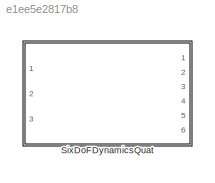
MODEL slx_e1ee5e2817b8
KIND library
CONFIG AbsTol = auto
CONFIG EnableMultiTasking = off
CONFIG FixedStep = auto
CONFIG MaxStep = auto
CONFIG MinStep = auto
CONFIG RelTol = 1e-3
CONFIG SampleTimeConstraint = Unconstrained
CONFIG Solver = VariableStepAuto
CONFIG SolverName = VariableStepAuto
CONFIG StartTime = 0.0
CONFIG StopTime = 10.0
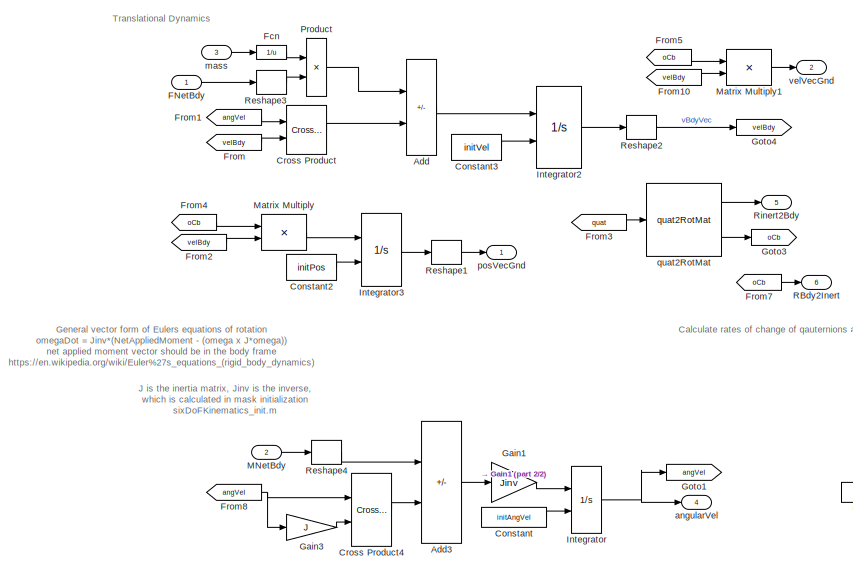
[diagram: SixDoFDynamicsQuat - part 1/2, left side, full height]
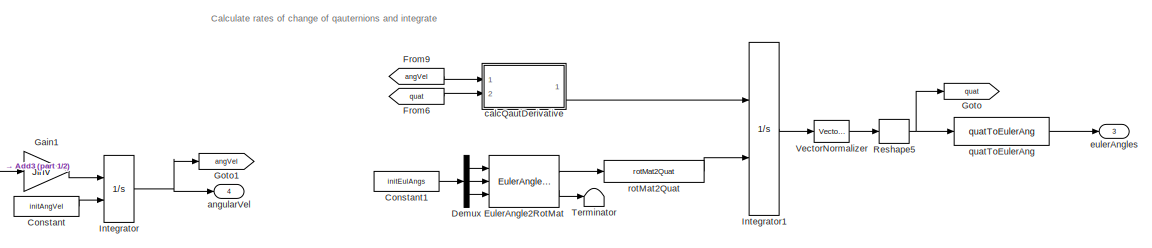
[diagram: SixDoFDynamicsQuat - part 2/2, bottom center region]
BLOCK [SubSystem] SixDoFDynamicsQuat
  Ports = [3, 6]
  RequestExecContextInheritance = off
BLOCK [Sum] SixDoFDynamicsQuat/Add
  IconShape = rectangular
  Inputs = +-
  Ports = [2, 1]
BLOCK [Sum] SixDoFDynamicsQuat/Add3
  IconShape = rectangular
  Inputs = +-
  Ports = [2, 1]
BLOCK [Constant] SixDoFDynamicsQuat/Constant
  Value = initAngVel
BLOCK [Constant] SixDoFDynamicsQuat/Constant1
  Value = initEulAngs
BLOCK [Constant] SixDoFDynamicsQuat/Constant2
  Value = initPos
BLOCK [Constant] SixDoFDynamicsQuat/Constant3
  Value = initVel
BLOCK [Reference] SixDoFDynamicsQuat/Cross Product  REF=vrlib/Utilities/Cross Product
  Ports = [2, 1]
  SourceBlock = vrlib/Utilities/Cross Product
  SourceProductBaseCode = SL
  SourceType = Cross Product
BLOCK [Reference] SixDoFDynamicsQuat/Cross Product4  REF=vrlib/Utilities/Cross Product
  Ports = [2, 1]
  SourceBlock = vrlib/Utilities/Cross Product
  SourceProductBaseCode = SL
  SourceType = Cross Product
BLOCK [Demux] SixDoFDynamicsQuat/Demux
  Outputs = 3
  Ports = [1, 3]
BLOCK [Reference] SixDoFDynamicsQuat/EulerAngle2RotMat  REF=eulAng2RotMat_ul/EulerAngle2RotMat
  Ports = [3, 2]
  SourceBlock = eulAng2RotMat_ul/EulerAngle2RotMat
  SourceType = SubSystem
BLOCK [Inport] SixDoFDynamicsQuat/FNetBdy
BLOCK [Fcn] SixDoFDynamicsQuat/Fcn
  Expr = 1/u
BLOCK [From] SixDoFDynamicsQuat/From
  GotoTag = velBdy
BLOCK [From] SixDoFDynamicsQuat/From1
  GotoTag = angVel
BLOCK [From] SixDoFDynamicsQuat/From10
  GotoTag = velBdy
BLOCK [From] SixDoFDynamicsQuat/From2
  GotoTag = velBdy
BLOCK [From] SixDoFDynamicsQuat/From3
  GotoTag = quat
BLOCK [From] SixDoFDynamicsQuat/From4
  GotoTag = oCb
BLOCK [From] SixDoFDynamicsQuat/From5
  GotoTag = oCb
BLOCK [From] SixDoFDynamicsQuat/From6
  GotoTag = quat
BLOCK [From] SixDoFDynamicsQuat/From7
  GotoTag = oCb
BLOCK [From] SixDoFDynamicsQuat/From8
  GotoTag = angVel
BLOCK [From] SixDoFDynamicsQuat/From9
  GotoTag = angVel
BLOCK [Gain] SixDoFDynamicsQuat/Gain1
  Gain = Jinv
  Multiplication = Matrix(K*u)
BLOCK [Gain] SixDoFDynamicsQuat/Gain3
  Gain = J
  Multiplication = Matrix(K*u)
BLOCK [Goto] SixDoFDynamicsQuat/Goto
  GotoTag = quat
BLOCK [Goto] SixDoFDynamicsQuat/Goto1
  GotoTag = angVel
BLOCK [Goto] SixDoFDynamicsQuat/Goto3
  GotoTag = oCb
BLOCK [Goto] SixDoFDynamicsQuat/Goto4
  GotoTag = velBdy
BLOCK [Integrator] SixDoFDynamicsQuat/Integrator
  InitialCondition = initAngRates
  InitialConditionSource = external
  Ports = [2, 1]
BLOCK [Integrator] SixDoFDynamicsQuat/Integrator1
  InitialCondition = initEulAngs
  InitialConditionSource = external
  Ports = [2, 1]
BLOCK [Integrator] SixDoFDynamicsQuat/Integrator2
  InitialCondition = initVel
  InitialConditionSource = external
  Ports = [2, 1]
BLOCK [Integrator] SixDoFDynamicsQuat/Integrator3
  InitialCondition = initPos
  InitialConditionSource = external
  Ports = [2, 1]
BLOCK [Inport] SixDoFDynamicsQuat/MNetBdy
  Port = 2
BLOCK [Product] SixDoFDynamicsQuat/Matrix Multiply
  Multiplication = Matrix(*)
  Ports = [2, 1]
BLOCK [Product] SixDoFDynamicsQuat/Matrix Multiply1
  Multiplication = Matrix(*)
  Ports = [2, 1]
BLOCK [Product] SixDoFDynamicsQuat/Product
  Ports = [2, 1]
BLOCK [Outport] SixDoFDynamicsQuat/RBdy2Inert
  Port = 6
  VectorParamsAs1DForOutWhenUnconnected = off
BLOCK [Reshape] SixDoFDynamicsQuat/Reshape1
  OutputDimensionality = Column vector (2-D)
  Ports = [1, 1]
BLOCK [Reshape] SixDoFDynamicsQuat/Reshape2
  OutputDimensionality = Column vector (2-D)
  Ports = [1, 1]
BLOCK [Reshape] SixDoFDynamicsQuat/Reshape3
  OutputDimensionality = Column vector (2-D)
  Ports = [1, 1]
BLOCK [Reshape] SixDoFDynamicsQuat/Reshape4
  OutputDimensionality = Column vector (2-D)
  Ports = [1, 1]
BLOCK [Reshape] SixDoFDynamicsQuat/Reshape5
  OutputDimensionality = Column vector (2-D)
  Ports = [1, 1]
BLOCK [Outport] SixDoFDynamicsQuat/Rinert2Bdy
  Port = 5
  VectorParamsAs1DForOutWhenUnconnected = off
BLOCK [Terminator] SixDoFDynamicsQuat/Terminator
BLOCK [Reference] SixDoFDynamicsQuat/VectorNormalizer   REF=vectorNormalizer_ul/VectorNormalizer

  Ports = [1, 1]
  SourceBlock = vectorNormalizer_ul/VectorNormalizer
  SourceType = SubSystem
BLOCK [Outport] SixDoFDynamicsQuat/angularVel
  Port = 4
  VectorParamsAs1DForOutWhenUnconnected = off
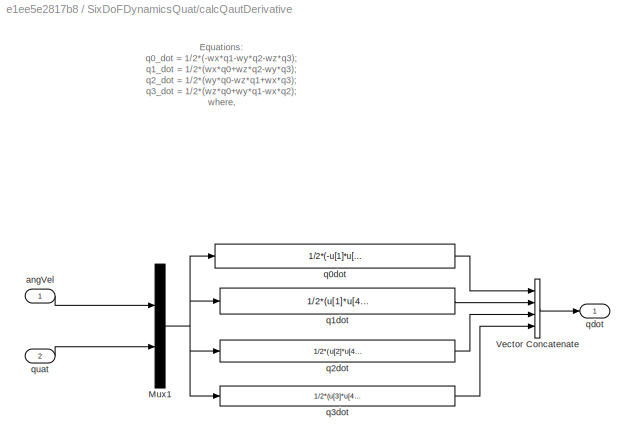
BLOCK [SubSystem] SixDoFDynamicsQuat/calcQautDerivative
  Ports = [2, 1]
  RequestExecContextInheritance = off
BLOCK [Mux] SixDoFDynamicsQuat/calcQautDerivative/Mux1
  DisplayOption = bar
  Inputs = [3 4]
  Ports = [2, 1]
BLOCK [Concatenate] SixDoFDynamicsQuat/calcQautDerivative/Vector Concatenate
  NumInputs = 4
  Ports = [4, 1]
BLOCK [Inport] SixDoFDynamicsQuat/calcQautDerivative/angVel
BLOCK [Fcn] SixDoFDynamicsQuat/calcQautDerivative/q0dot
  Expr = 1/2*(-u[1]*u[5]-u[2]*u[6]-u[3]*u[7])
BLOCK [Fcn] SixDoFDynamicsQuat/calcQautDerivative/q1dot
  Expr = 1/2*(u[1]*u[4]+u[3]*u[6]-u[2]*u[7])
BLOCK [Fcn] SixDoFDynamicsQuat/calcQautDerivative/q2dot
  Expr = 1/2*(u[2]*u[4]-u[3]*u[5]+u[1]*u[7])
BLOCK [Fcn] SixDoFDynamicsQuat/calcQautDerivative/q3dot
  Expr = 1/2*(u[3]*u[4]+u[2]*u[5]-u[1]*u[6])
BLOCK [Outport] SixDoFDynamicsQuat/calcQautDerivative/qdot
  PortDimensions = [4,1]
  VectorParamsAs1DForOutWhenUnconnected = off
BLOCK [Inport] SixDoFDynamicsQuat/calcQautDerivative/quat
  Port = 2
BLOCK [Outport] SixDoFDynamicsQuat/eulerAngles
  Port = 3
  VectorParamsAs1DForOutWhenUnconnected = off
BLOCK [Inport] SixDoFDynamicsQuat/mass
  Port = 3
BLOCK [Outport] SixDoFDynamicsQuat/posVecGnd
  VectorParamsAs1DForOutWhenUnconnected = off
BLOCK [Reference] SixDoFDynamicsQuat/quat2RotMat  REF=quat2RotMat_ul/quat2RotMat
  Ports = [1, 2]
  SourceBlock = quat2RotMat_ul/quat2RotMat
  SourceType = SubSystem
BLOCK [Reference] SixDoFDynamicsQuat/quatToEulerAng  REF=quat2EulerAng_ul/quatToEulerAng
  Ports = [1, 1]
  SourceBlock = quat2EulerAng_ul/quatToEulerAng
  SourceType = SubSystem
BLOCK [Reference] SixDoFDynamicsQuat/rotMat2Quat  REF=rotMat2Quat_ul/rotMat2Quat
  Ports = [1, 1]
  SourceBlock = rotMat2Quat_ul/rotMat2Quat
  SourceType = SubSystem
BLOCK [Outport] SixDoFDynamicsQuat/velVecGnd
  Port = 2
  VectorParamsAs1DForOutWhenUnconnected = off
ANNOTATION SixDoFDynamicsQuat: Calculate rates of change of qauternions and integrate
ANNOTATION SixDoFDynamicsQuat: General vector form of Eulers equations of rotation omegaDot = Jinv*(NetAppliedMoment - (omega x J*omega)) net applied moment vector should be in the body frame https://en.wikipedia.org/wiki/Euler%27s_equations_(rigid_body_dynamics)
ANNOTATION SixDoFDynamicsQuat: J is the inertia matrix, Jinv is the inverse, which is calculated in mask initialization sixDoFKinematics_init.m
ANNOTATION SixDoFDynamicsQuat: Translational Dynamics
ANNOTATION SixDoFDynamicsQuat/calcQautDerivative: Equations: q0_dot = 1/2*(-wx*q1-wy*q2-wz*q3); q1_dot = 1/2*(wx*q0+wz*q2-wy*q3); q2_dot = 1/2*(wy*q0-wz*q1+wx*q3); q3_dot = 1/2*(wz*q0+wy*q1-wx*q2); where, wx..wz=u[1]..u[3] q0..q3 = u[4]...u[7]
LINE SixDoFDynamicsQuat/Add3:1 -> SixDoFDynamicsQuat/Gain1:1
LINE SixDoFDynamicsQuat/Add:1 -> SixDoFDynamicsQuat/Integrator2:1
LINE SixDoFDynamicsQuat/Constant1:1 -> SixDoFDynamicsQuat/Demux:1
LINE SixDoFDynamicsQuat/Constant2:1 -> SixDoFDynamicsQuat/Integrator3:2
LINE SixDoFDynamicsQuat/Constant3:1 -> SixDoFDynamicsQuat/Integrator2:2
LINE SixDoFDynamicsQuat/Constant:1 -> SixDoFDynamicsQuat/Integrator:2
LINE SixDoFDynamicsQuat/Cross Product4:1 -> SixDoFDynamicsQuat/Add3:2
LINE SixDoFDynamicsQuat/Cross Product:1 -> SixDoFDynamicsQuat/Add:2
LINE SixDoFDynamicsQuat/Demux:1 -> SixDoFDynamicsQuat/EulerAngle2RotMat:1
LINE SixDoFDynamicsQuat/Demux:2 -> SixDoFDynamicsQuat/EulerAngle2RotMat:2
LINE SixDoFDynamicsQuat/Demux:3 -> SixDoFDynamicsQuat/EulerAngle2RotMat:3
LINE SixDoFDynamicsQuat/EulerAngle2RotMat:1 -> SixDoFDynamicsQuat/rotMat2Quat:1
LINE SixDoFDynamicsQuat/EulerAngle2RotMat:2 -> SixDoFDynamicsQuat/Terminator:1
LINE SixDoFDynamicsQuat/FNetBdy:1 -> SixDoFDynamicsQuat/Reshape3:1
LINE SixDoFDynamicsQuat/Fcn:1 -> SixDoFDynamicsQuat/Product:1
LINE SixDoFDynamicsQuat/From10:1 -> SixDoFDynamicsQuat/Matrix Multiply1:2
LINE SixDoFDynamicsQuat/From1:1 -> SixDoFDynamicsQuat/Cross Product:1
LINE SixDoFDynamicsQuat/From2:1 -> SixDoFDynamicsQuat/Matrix Multiply:2
LINE SixDoFDynamicsQuat/From3:1 -> SixDoFDynamicsQuat/quat2RotMat:1
LINE SixDoFDynamicsQuat/From4:1 -> SixDoFDynamicsQuat/Matrix Multiply:1
LINE SixDoFDynamicsQuat/From5:1 -> SixDoFDynamicsQuat/Matrix Multiply1:1
LINE SixDoFDynamicsQuat/From6:1 -> SixDoFDynamicsQuat/calcQautDerivative:2
LINE SixDoFDynamicsQuat/From7:1 -> SixDoFDynamicsQuat/RBdy2Inert:1
NET SixDoFDynamicsQuat/From8:1 -> SixDoFDynamicsQuat/Cross Product4:1, SixDoFDynamicsQuat/Gain3:1
LINE SixDoFDynamicsQuat/From9:1 -> SixDoFDynamicsQuat/calcQautDerivative:1
LINE SixDoFDynamicsQuat/From:1 -> SixDoFDynamicsQuat/Cross Product:2
LINE SixDoFDynamicsQuat/Gain1:1 -> SixDoFDynamicsQuat/Integrator:1
LINE SixDoFDynamicsQuat/Gain3:1 -> SixDoFDynamicsQuat/Cross Product4:2
LINE SixDoFDynamicsQuat/Integrator1:1 -> SixDoFDynamicsQuat/VectorNormalizer :1
LINE SixDoFDynamicsQuat/Integrator2:1 -> SixDoFDynamicsQuat/Reshape2:1
LINE SixDoFDynamicsQuat/Integrator3:1 -> SixDoFDynamicsQuat/Reshape1:1
NET SixDoFDynamicsQuat/Integrator:1 -> SixDoFDynamicsQuat/Goto1:1, SixDoFDynamicsQuat/angularVel:1
LINE SixDoFDynamicsQuat/MNetBdy:1 -> SixDoFDynamicsQuat/Reshape4:1
LINE SixDoFDynamicsQuat/Matrix Multiply1:1 -> SixDoFDynamicsQuat/velVecGnd:1
LINE SixDoFDynamicsQuat/Matrix Multiply:1 -> SixDoFDynamicsQuat/Integrator3:1
LINE SixDoFDynamicsQuat/Product:1 -> SixDoFDynamicsQuat/Add:1
LINE SixDoFDynamicsQuat/Reshape1:1 -> SixDoFDynamicsQuat/posVecGnd:1
LINE SixDoFDynamicsQuat/Reshape2:1 -> SixDoFDynamicsQuat/Goto4:1
LINE SixDoFDynamicsQuat/Reshape3:1 -> SixDoFDynamicsQuat/Product:2
LINE SixDoFDynamicsQuat/Reshape4:1 -> SixDoFDynamicsQuat/Add3:1
NET SixDoFDynamicsQuat/Reshape5:1 -> SixDoFDynamicsQuat/Goto:1, SixDoFDynamicsQuat/quatToEulerAng:1
LINE SixDoFDynamicsQuat/VectorNormalizer :1 -> SixDoFDynamicsQuat/Reshape5:1
NET SixDoFDynamicsQuat/calcQautDerivative/Mux1:1 -> SixDoFDynamicsQuat/calcQautDerivative/q0dot:1, SixDoFDynamicsQuat/calcQautDerivative/q1dot:1, SixDoFDynamicsQuat/calcQautDerivative/q2dot:1, SixDoFDynamicsQuat/calcQautDerivative/q3dot:1
LINE SixDoFDynamicsQuat/calcQautDerivative/Vector Concatenate:1 -> SixDoFDynamicsQuat/calcQautDerivative/qdot:1
LINE SixDoFDynamicsQuat/calcQautDerivative/angVel:1 -> SixDoFDynamicsQuat/calcQautDerivative/Mux1:1
LINE SixDoFDynamicsQuat/calcQautDerivative/q0dot:1 -> SixDoFDynamicsQuat/calcQautDerivative/Vector Concatenate:1
LINE SixDoFDynamicsQuat/calcQautDerivative/q1dot:1 -> SixDoFDynamicsQuat/calcQautDerivative/Vector Concatenate:2
LINE SixDoFDynamicsQuat/calcQautDerivative/q2dot:1 -> SixDoFDynamicsQuat/calcQautDerivative/Vector Concatenate:3
LINE SixDoFDynamicsQuat/calcQautDerivative/q3dot:1 -> SixDoFDynamicsQuat/calcQautDerivative/Vector Concatenate:4
LINE SixDoFDynamicsQuat/calcQautDerivative/quat:1 -> SixDoFDynamicsQuat/calcQautDerivative/Mux1:2
LINE SixDoFDynamicsQuat/calcQautDerivative:1 -> SixDoFDynamicsQuat/Integrator1:1
LINE SixDoFDynamicsQuat/mass:1 -> SixDoFDynamicsQuat/Fcn:1
LINE SixDoFDynamicsQuat/quat2RotMat:1 -> SixDoFDynamicsQuat/Rinert2Bdy:1
LINE SixDoFDynamicsQuat/quat2RotMat:2 -> SixDoFDynamicsQuat/Goto3:1
LINE SixDoFDynamicsQuat/quatToEulerAng:1 -> SixDoFDynamicsQuat/eulerAngles:1
LINE SixDoFDynamicsQuat/rotMat2Quat:1 -> SixDoFDynamicsQuat/Integrator1:2
note: NET lines group one-source signal fan-out (src -> all destinations, sorted); 1:1 wires keep LINE
